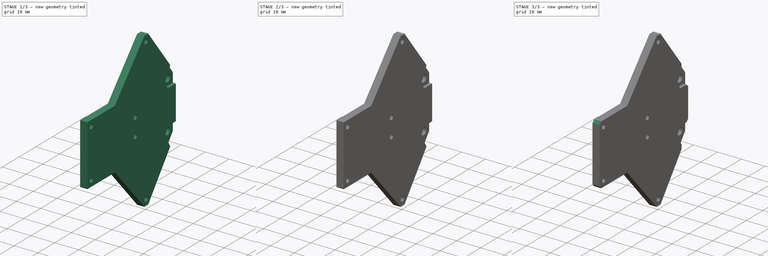
[diagram: build sequence overview — one tinted view per stage of 3, left to right]
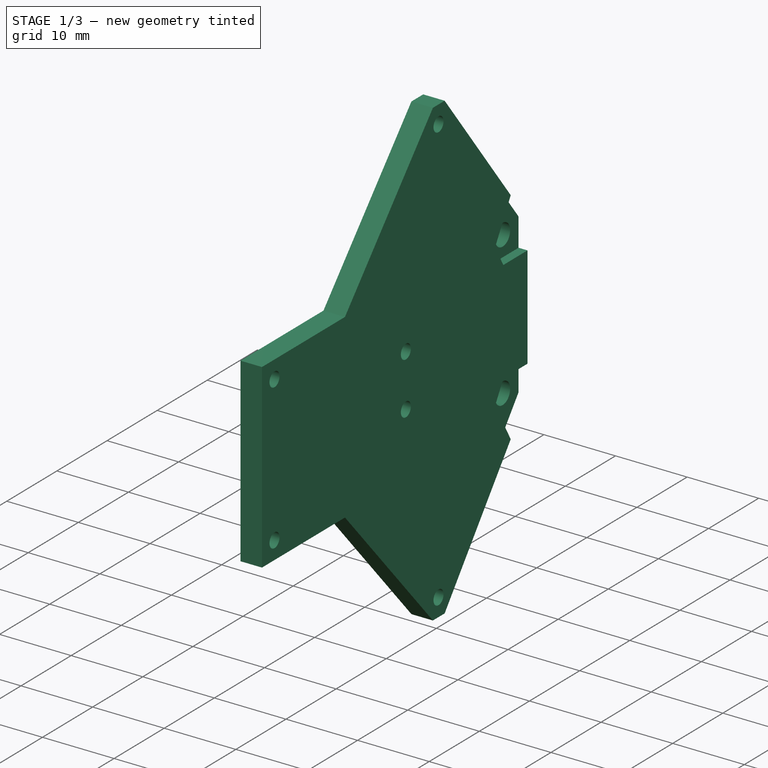
[diagram: stage 1 of 3 — iso view after this stage's code; geometry added in this stage tinted green]
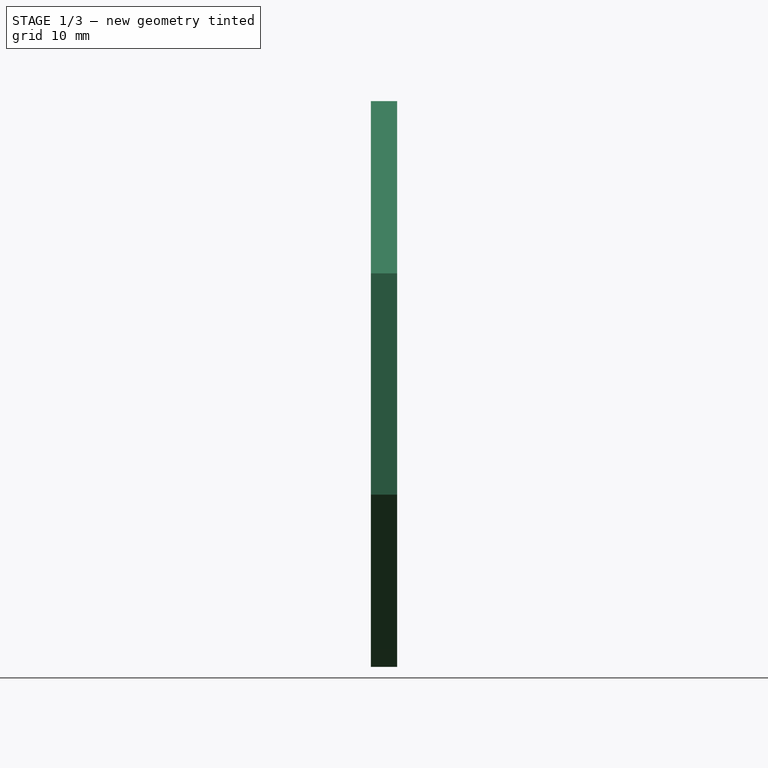
[diagram: stage 1 of 3 — front view after this stage's code; geometry added in this stage tinted green]
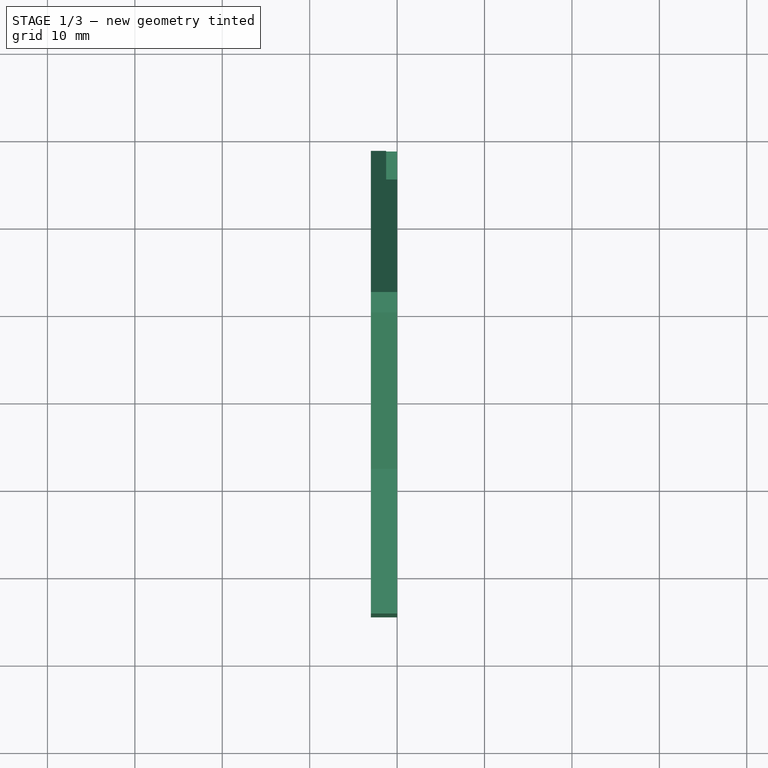
[diagram: stage 1 of 3 — top view after this stage's code; geometry added in this stage tinted green]
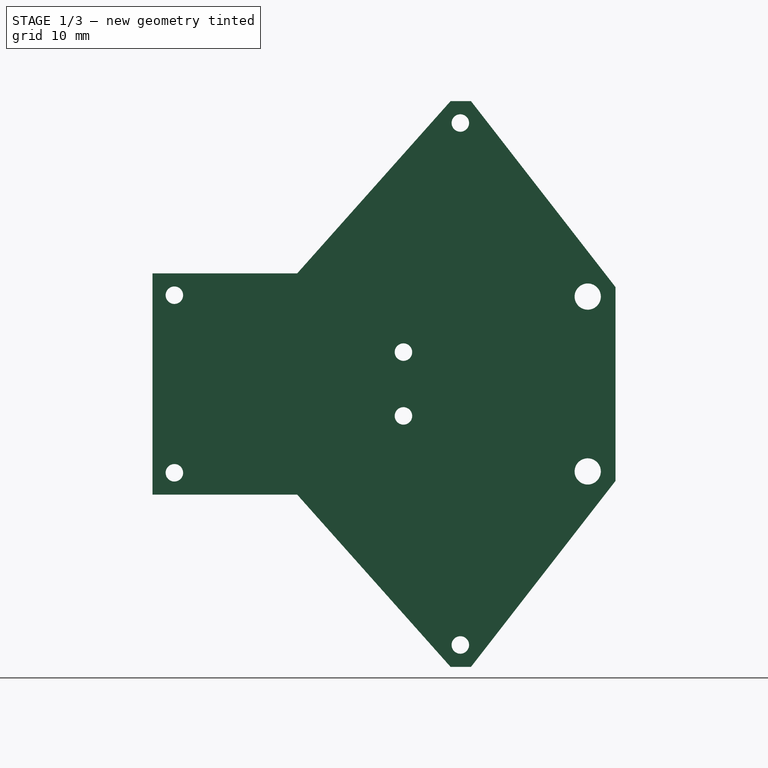
[diagram: stage 1 of 3 — right view after this stage's code; geometry added in this stage tinted green]
FCSTD DOCUMENT  (FreeCAD 0.21R33771 (Git))
Label: Leg_frame_nee3
License: All rights reserved
LicenseURL: https://en.wikipedia.org/wiki/All_rights_reserved
objects: Sketcher::SketchObject×3, PartDesign::Pad×2, PartDesign::Chamfer×2, PartDesign::Pocket×1, PartDesign::Body×1
note: 14 computed .brp shape members not serialized (recipe doc carries the construction recipe); baked Part::Feature solids carry a one-line shape summary decoded from their .brp

FEATURE [Sketcher::SketchObject] Sketch
  FullyConstrained = true
  MapMode = 5
  Placement = pos=(0,0,0) rot=(0.57735,0.57735,0.57735;2.0944rad)
  Support = -> [YZ_Plane]
  sketch-geometry (57):
    g0: Circle CenterX=0 CenterY=23.5 CenterZ=0 NormalX=0 NormalY=0 NormalZ=1 AngleXU=0 Radius=16
    g1: LineSegment StartX=3.85635 StartY=39.0283 StartZ=0 EndX=33.9425 EndY=31.5566 EndZ=0
    g2: LineSegment StartX=33.9425 StartY=31.5566 StartZ=0 EndX=26.2298 EndY=0.5 EndZ=0
    g3: LineSegment StartX=26.2298 StartY=0.5 StartZ=0 EndX=-3.85635 EndY=7.97169 EndZ=0
    g4: Circle CenterX=0 CenterY=-23.5 CenterZ=0 NormalX=0 NormalY=0 NormalZ=1 AngleXU=0 Radius=16
    g5: LineSegment StartX=3.85635 StartY=-39.0283 StartZ=0 EndX=33.9425 EndY=-31.5566 EndZ=0
    g6: LineSegment StartX=33.9425 StartY=-31.5566 StartZ=0 EndX=26.2298 EndY=-0.5 EndZ=0
    g7: LineSegment StartX=-3.85635 StartY=-7.97169 StartZ=0 EndX=26.2298 EndY=-0.5 EndZ=0
    g8: LineSegment StartX=0 StartY=23.5 StartZ=0 EndX=0 EndY=-23.5 EndZ=0
    g9: LineSegment StartX=45 StartY=10 StartZ=0 EndX=45 EndY=-10 EndZ=0
    g10: LineSegment StartX=4.22432 StartY=36.361 StartZ=0 EndX=30.4283 EndY=29.8534 EndZ=0
    g11: LineSegment StartX=30.4283 StartY=29.8534 StartZ=0 EndX=23.9208 EndY=3.64937 EndZ=0
    g12: LineSegment StartX=23.9208 StartY=3.64937 StartZ=0 EndX=-2.28328 EndY=10.157 EndZ=0
    g13: LineSegment StartX=-2.28328 StartY=10.157 StartZ=0 EndX=4.22432 EndY=36.361 EndZ=0
    g14: Circle CenterX=4.22432 CenterY=36.361 CenterZ=0 NormalX=0 NormalY=0 NormalZ=1 AngleXU=0 Radius=1
    g15: Circle CenterX=-2.28328 CenterY=10.157 CenterZ=0 NormalX=0 NormalY=0 NormalZ=1 AngleXU=0 Radius=1
    g16: Circle CenterX=23.9208 CenterY=3.64937 CenterZ=0 NormalX=0 NormalY=0 NormalZ=1 AngleXU=0 Radius=1
    g17: Circle CenterX=30.4283 CenterY=29.8534 CenterZ=0 NormalX=0 NormalY=0 NormalZ=1 AngleXU=0 Radius=1
    g18: LineSegment StartX=-2.28328 StartY=-10.157 StartZ=0 EndX=23.9208 EndY=-3.64937 EndZ=0
    g19: LineSegment StartX=23.9208 StartY=-3.64937 StartZ=0 EndX=30.4283 EndY=-29.8534 EndZ=0
    g20: LineSegment StartX=30.4283 StartY=-29.8534 StartZ=0 EndX=4.22432 EndY=-36.361 EndZ=0
    g21: LineSegment StartX=4.22432 StartY=-36.361 StartZ=0 EndX=-2.28328 EndY=-10.157 EndZ=0
    g22: Circle CenterX=-2.28328 CenterY=-10.157 CenterZ=0 NormalX=0 NormalY=0 NormalZ=1 AngleXU=0 Radius=1
    g23: Circle CenterX=4.22432 CenterY=-36.361 CenterZ=0 NormalX=0 NormalY=0 NormalZ=1 AngleXU=0 Radius=1
    g24: Circle CenterX=30.4283 CenterY=-29.8534 CenterZ=0 NormalX=0 NormalY=0 NormalZ=1 AngleXU=0 Radius=1
    g25: Circle CenterX=23.9208 CenterY=-3.64937 CenterZ=0 NormalX=0 NormalY=0 NormalZ=1 AngleXU=0 Radius=1
    g26: LineSegment StartX=0 StartY=23.5 StartZ=0 EndX=0.97052 EndY=23.259 EndZ=0
    g27: LineSegment StartX=0 StartY=-23.5 StartZ=0 EndX=0.97052 EndY=-23.259 EndZ=0
    g28: Circle CenterX=45 CenterY=10 CenterZ=0 NormalX=0 NormalY=0 NormalZ=1 AngleXU=0 Radius=1.5
    g29: Circle CenterX=45 CenterY=-10 CenterZ=0 NormalX=0 NormalY=0 NormalZ=1 AngleXU=0 Radius=1.5
    g30: LineSegment StartX=26.2298 StartY=0.5 StartZ=0 EndX=43.1548 EndY=12.5843 EndZ=0
    g31: Circle CenterX=28 CenterY=37 CenterZ=0 NormalX=0 NormalY=0 NormalZ=1 AngleXU=0 Radius=3
    g32: LineSegment StartX=48.1754 StartY=11.0887 StartZ=0 EndX=48.1754 EndY=-11.0887 EndZ=0
    g33: LineSegment StartX=-9.0955 StartY=36.6633 StartZ=0 EndX=-14.197 EndY=16.1213 EndZ=0
    g34: LineSegment StartX=0 StartY=23.5 StartZ=0 EndX=-11.6462 EndY=26.3923 EndZ=0
    g35: Circle CenterX=30.4283 CenterY=-29.8534 CenterZ=0 NormalX=0 NormalY=0 NormalZ=1 AngleXU=0 Radius=2.5
    g36: LineSegment StartX=48.1754 StartY=11.0887 StartZ=0 EndX=31.6518 EndY=32.3534 EndZ=0
    g37: Circle CenterX=4.22432 CenterY=36.361 CenterZ=0 NormalX=0 NormalY=0 NormalZ=1 AngleXU=0 Radius=2.5
    g38: LineSegment StartX=48.1754 StartY=-11.0887 StartZ=0 EndX=31.6518 EndY=-32.3534 EndZ=0
    g39: Circle CenterX=4.22432 CenterY=-36.361 CenterZ=0 NormalX=0 NormalY=0 NormalZ=1 AngleXU=0 Radius=2.5
    g40: LineSegment StartX=29.307 StartY=32.3534 StartZ=0 EndX=31.6518 EndY=32.3534 EndZ=0
    g41: Circle CenterX=30.4283 CenterY=29.8534 CenterZ=0 NormalX=0 NormalY=0 NormalZ=1 AngleXU=0 Radius=2.5
    g42: LineSegment StartX=-4.78328 StartY=12.657 StartZ=0 EndX=11.7687 EndY=12.657 EndZ=0
    g43: LineSegment StartX=11.7687 StartY=12.657 StartZ=0 EndX=29.307 EndY=32.3534 EndZ=0
    g44: LineSegment StartX=29.307 StartY=-32.3534 StartZ=0 EndX=31.6518 EndY=-32.3534 EndZ=0
    g45: LineSegment StartX=-4.78328 StartY=-12.657 StartZ=0 EndX=11.7687 EndY=-12.657 EndZ=0
    g46: LineSegment StartX=11.7687 StartY=-12.657 StartZ=0 EndX=29.307 EndY=-32.3534 EndZ=0
    g47: LineSegment StartX=43.4123 StartY=12.75 StartZ=0 EndX=41.8246 EndY=10 EndZ=0
    g48: LineSegment StartX=41.8246 StartY=10 StartZ=0 EndX=43.4123 EndY=7.25 EndZ=0
    g49: LineSegment StartX=43.4123 StartY=7.25 StartZ=0 EndX=46.5877 EndY=7.25 EndZ=0
    g50: LineSegment StartX=46.5877 StartY=7.25 StartZ=0 EndX=48.1754 EndY=10 EndZ=0
    g51: LineSegment StartX=48.1754 StartY=10 StartZ=0 EndX=46.5877 EndY=12.75 EndZ=0
    g52: LineSegment StartX=46.5877 StartY=12.75 StartZ=0 EndX=43.4123 EndY=12.75 EndZ=0
    g53: Circle CenterX=45 CenterY=10 CenterZ=0 NormalX=0 NormalY=0 NormalZ=1 AngleXU=0 Radius=3.17543
    g54: LineSegment StartX=26.2298 StartY=-0.5 StartZ=0 EndX=26.2298 EndY=0.5 EndZ=0
    g55: LineSegment StartX=-4.78328 StartY=-12.657 StartZ=0 EndX=-4.78328 EndY=12.657 EndZ=0
    g56: Circle CenterX=-2.28328 CenterY=10.157 CenterZ=0 NormalX=0 NormalY=0 NormalZ=1 AngleXU=0 Radius=2.5
  constraints (143):
    c: Coincident(g2,g1)
    c: Coincident(g3,g2)
    c: Tangent(g3,g0) = 1.5708
    c: Tangent(g1,g0) = 1.5708
    c: Diameter(g4) = 32
    c: Coincident(g6,g5)
    c: Tangent(g5,g4) = -1.5708
    c: Coincident(g7,g6)
    c: Tangent(g7,g4) = 1.5708
    c: Equal(g7,g3)
    c: PointOnObject(g-1,g8)
    c: DistanceY(g8,g8) = 47
    c: DistanceY(g9,g9) = 20
    c: Perpendicular(g1,g2)
    c: Perpendicular(g2,g3)
    c: Perpendicular(g6,g7)
    c: Perpendicular(g5,g6)
    c: Distance(g1) = 31
    c: Coincident(g10,g11)
    c: Coincident(g11,g12)
    c: Coincident(g12,g13)
    c: Coincident(g13,g10)
    c: Coincident(g14,g10)
    c: Coincident(g15,g12)
    c: Coincident(g16,g11)
    c: Coincident(g17,g10)
    c: Equal(g0,g4)
    c: Symmetric(g9,g9,g-1)
    c: DistanceX(g-1,g9) = 45
    c: Equal(g15,g14)
    c: Equal(g14,g17)
    c: Equal(g17,g16)
    c: Equal(g13,g10)
    c: Equal(g10,g11)
    c: Equal(g11,g12)
    c: Distance(g10) = 27
    c: Coincident(g18,g19)
    c: Coincident(g19,g20)
    c: Coincident(g20,g21)
    c: Coincident(g21,g18)
    c: Coincident(g22,g18)
    c: Coincident(g23,g20)
    c: Coincident(g24,g19)
    c: Coincident(g25,g18)
    c: Equal(g23,g22)
    c: Equal(g22,g25)
    c: Equal(g25,g24)
    c: Equal(g14,g22) = 2
    c: Equal(g21,g18)
    c: Equal(g18,g19)
    c: Equal(g19,g20)
    c: Equal(g10,g18) = 27
    c: PointOnObject(g26,g13)
    c: Parallel(g26,g1)
    c: Symmetric(g15,g14,g26)
    c: Perpendicular(g13,g10)
    c: PointOnObject(g27,g21)
    c: Parallel(g20,g5)
    c: Symmetric(g22,g23,g27)
    c: Symmetric(g26,g27,g-1)
    c: Coincident(g28,g9)
    c: Coincident(g29,g9)
    c: Diameter(g28) = 3
    c: Equal(g29,g28)
    c: Coincident(g30,g2)
    c: DistanceY(g6,g2) = 1
    c: Diameter(g31) = 6
    c: Symmetric(g32,g32,g-1)
    c: PointOnObject(g33,g0)
    c: PointOnObject(g33,g0)
    c: PointOnObject(g34,g33)
    c: Perpendicular(g33,g34)
    c: Distance(g34) = 12
    c: Distance(g26) = 1
    c: Parallel(g26,g34)
    c: Diameter(g15) = 2
    c: Coincident(g35,g24)
    c: Tangent(g35,g5)
    c: Coincident(g36,g32)
    c: Coincident(g36,g40)
    c: Coincident(g37,g14)
    c: Tangent(g37,g1)
    c: Coincident(g38,g32)
    c: Coincident(g38,g44)
    c: Coincident(g39,g20)
    c: Coincident(g43,g40)
    c: Coincident(g41,g17)
    c: Tangent(g41,g1)
    c: Tangent(g40,g41)
    c: Tangent(g36,g41)
    c: Coincident(g42,g43)
    c: Tangent(g43,g41)
    c: Horizontal(g42)
    c: Horizontal(g40)
    c: Tangent(g0,g43)
    c: Coincident(g46,g44)
    c: Coincident(g45,g46)
    c: Horizontal(g44)
    c: Tangent(g44,g35)
    c: Tangent(g38,g35)
    c: Tangent(g46,g35)
    c: Tangent(g46,g4)
    c: Horizontal(g45)
    c: Coincident(g47,g48)
    c: Coincident(g48,g49)
    c: Coincident(g49,g50)
    c: Coincident(g50,g51)
    c: Coincident(g51,g52)
    c: Coincident(g52,g47)
    c: Equal(g47, g48-g52) x5
    c: PointOnObject(g47,g53)
    c: PointOnObject(g48,g53)
    c: PointOnObject(g49,g53)
    c: PointOnObject(g50,g53)
    c: PointOnObject(g51,g53)
    c: PointOnObject(g52,g53)
    c: Coincident(g53,g28)
    c: Tangent(g30,g53) = 1.5708
    c: Horizontal(g52)
    c: DistanceY(g48,g47) = 5.5
    c: Tangent(g53,g36)
    c: Tangent(g53,g32)
    c: DistanceY(g36,g31) = 4.6466
    c: Coincident(g0,g8)
    c: Coincident(g0,g34)
    c: Vertical(g8)
    c: Coincident(g0,g26)
    c: Equal(g35,g39)
    c: Equal(g39,g37)
    c: Coincident(g4,g8)
    c: Coincident(g4,g27)
    c: Coincident(g54,g6)
    c: Coincident(g54,g2)
    c: Vertical(g54)
    c: DistanceX(g0,g31) = 28
    c: DistanceY(g0,g31) = 13.5
    c: Coincident(g55,g45)
    c: Coincident(g55,g42)
    c: Coincident(g56,g15)
    c: Equal(g56,g37)
    c: Tangent(g42,g56)
    c: Tangent(g56,g55)
    c: Symmetric(g42,g45,g-1)
FEATURE [PartDesign::Pad] Pad
  Direction = (1,-2e-16,3e-16)
  Length = 3
  Length2 = 10
  Placement = pos=(0,0,0) rot=(1,1,1;2.0944rad)
  Profile = -> Sketch
  ReferenceAxis = -> Sketch [N_Axis]
  Reversed = true
  Type = 0
FEATURE [Sketcher::SketchObject] Sketch001
  ExternalGeometry = -> [Pad]
  FullyConstrained = true
  MapMode = 5
  Placement = pos=(-5.3e-15,0,0) rot=(0.57735,0.57735,0.57735;2.0944rad)
  Support = -> [Pad]
  sketch-geometry (22):
    g0: LineSegment StartX=43.3546 StartY=12.85 StartZ=0 EndX=41.7091 EndY=10 EndZ=0
    g1: LineSegment StartX=41.7091 StartY=10 StartZ=0 EndX=43.3546 EndY=7.15 EndZ=0
    g2: LineSegment StartX=43.3546 StartY=7.15 StartZ=0 EndX=46.6454 EndY=7.15 EndZ=0
    g3: LineSegment StartX=46.6454 StartY=7.15 StartZ=0 EndX=48.2909 EndY=10 EndZ=0
    g4: LineSegment StartX=48.2909 StartY=10 StartZ=0 EndX=46.6454 EndY=12.85 EndZ=0
    g5: LineSegment StartX=46.6454 StartY=12.85 StartZ=0 EndX=43.3546 EndY=12.85 EndZ=0
    g6: Circle CenterX=45 CenterY=10 CenterZ=0 NormalX=0 NormalY=0 NormalZ=1 AngleXU=0 Radius=3.2909
    g7: LineSegment StartX=43.3546 StartY=12.85 StartZ=0 EndX=44.8262 EndY=15.3989 EndZ=0
    g8: LineSegment StartX=46.6454 StartY=7.15 StartZ=0 EndX=48.1754 EndY=7.15 EndZ=0
    g9: LineSegment StartX=43.3546 StartY=-7.15 StartZ=0 EndX=41.7091 EndY=-10 EndZ=0
    g10: LineSegment StartX=41.7091 StartY=-10 StartZ=0 EndX=43.3546 EndY=-12.85 EndZ=0
    g11: LineSegment StartX=43.3546 StartY=-12.85 StartZ=0 EndX=46.6454 EndY=-12.85 EndZ=0
    g12: LineSegment StartX=46.6454 StartY=-12.85 StartZ=0 EndX=48.2909 EndY=-10 EndZ=0
    g13: LineSegment StartX=48.2909 StartY=-10 StartZ=0 EndX=46.6454 EndY=-7.15 EndZ=0
    g14: LineSegment StartX=46.6454 StartY=-7.15 StartZ=0 EndX=43.3546 EndY=-7.15 EndZ=0
    g15: Circle CenterX=45 CenterY=-10 CenterZ=0 NormalX=0 NormalY=0 NormalZ=1 AngleXU=0 Radius=3.2909
    g16: LineSegment StartX=46.6454 StartY=-7.15 StartZ=0 EndX=48.1754 EndY=-7.15 EndZ=0
    g17: LineSegment StartX=43.3546 StartY=-12.85 StartZ=0 EndX=44.8262 EndY=-15.3989 EndZ=0
    g18: LineSegment StartX=44.8262 StartY=15.3989 StartZ=0 EndX=48.1754 EndY=11.0887 EndZ=0
    g19: LineSegment StartX=48.1754 StartY=11.0887 StartZ=0 EndX=48.1754 EndY=7.15 EndZ=0
    g20: LineSegment StartX=48.1754 StartY=-7.15 StartZ=0 EndX=48.1754 EndY=-11.0887 EndZ=0
    g21: LineSegment StartX=44.8262 StartY=-15.3989 StartZ=0 EndX=48.1754 EndY=-11.0887 EndZ=0
  constraints (50):
    c: Coincident(g0,g1)
    c: Coincident(g1,g2)
    c: Coincident(g2,g3)
    c: Coincident(g3,g4)
    c: Coincident(g4,g5)
    c: Coincident(g5,g0)
    c: Equal(g0, g1-g5) x5
    c: PointOnObject(g0,g6)
    c: PointOnObject(g1,g6)
    c: PointOnObject(g2,g6)
    c: PointOnObject(g3,g6)
    c: PointOnObject(g4,g6)
    c: PointOnObject(g5,g6)
    c: Coincident(g6,g-3)
    c: DistanceY(g1,g0) = 5.7
    c: Horizontal(g5)
    c: PointOnObject(g7,g-4)
    c: Coincident(g8,g2)
    c: PointOnObject(g8,g-5)
    c: Horizontal(g8)
    c: Tangent(g7,g0) = 1.5708
    c: Coincident(g9,g10)
    c: Coincident(g10,g11)
    c: Coincident(g11,g12)
    c: Coincident(g12,g13)
    c: Coincident(g13,g14)
    c: Coincident(g14,g9)
    c: Equal(g9, g10-g14) x5
    c: PointOnObject(g9,g15)
    c: PointOnObject(g10,g15)
    c: PointOnObject(g11,g15)
    c: PointOnObject(g12,g15)
    c: PointOnObject(g13,g15)
    c: PointOnObject(g14,g15)
    c: Coincident(g15,g-6)
    c: Horizontal(g14)
    c: Coincident(g16,g14)
    c: PointOnObject(g16,g-5)
    c: Horizontal(g16)
    c: PointOnObject(g17,g-7)
    c: Tangent(g17,g10) = -1.5708
    c: Coincident(g18,g7)
    c: Coincident(g18,g-5)
    c: Coincident(g19,g18)
    c: Coincident(g19,g8)
    c: Coincident(g20,g16)
    c: Coincident(g20,g-7)
    c: Coincident(g21,g17)
    c: Coincident(g21,g20)
    c: Equal(g15,g6)
FEATURE [PartDesign::Pocket] Pocket
  BaseFeature = -> Pad
  Direction = (-1,4e-16,-4e-16)
  Length = 1.25
  Length2 = 5
  Placement = pos=(0,0,0) rot=(1,1,1;2.0944rad)
  Profile = -> Sketch001
  ReferenceAxis = -> Sketch001 [N_Axis]
  Type = 0
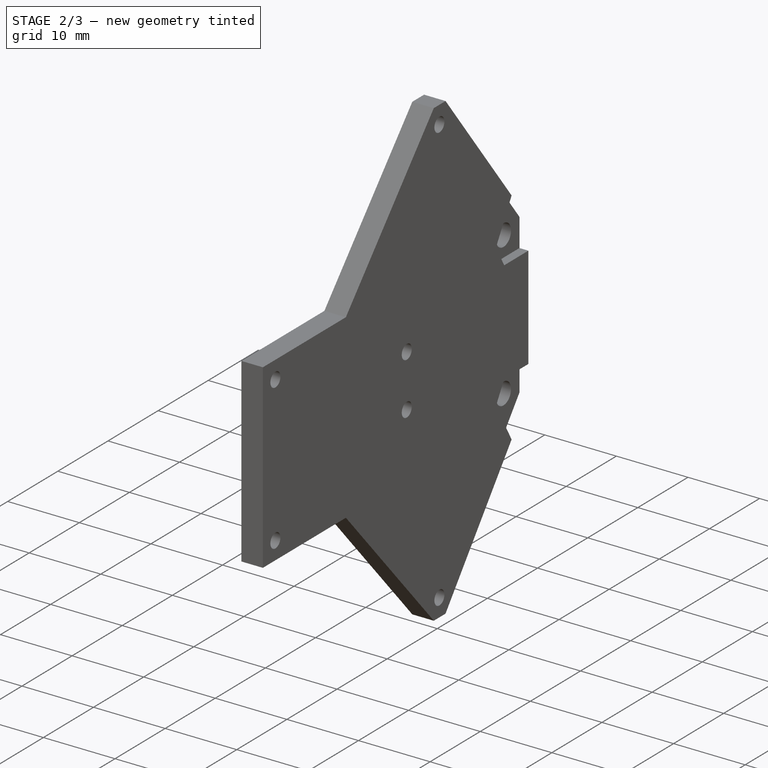
[diagram: stage 2 of 3 — iso view after this stage's code; geometry added in this stage tinted green]
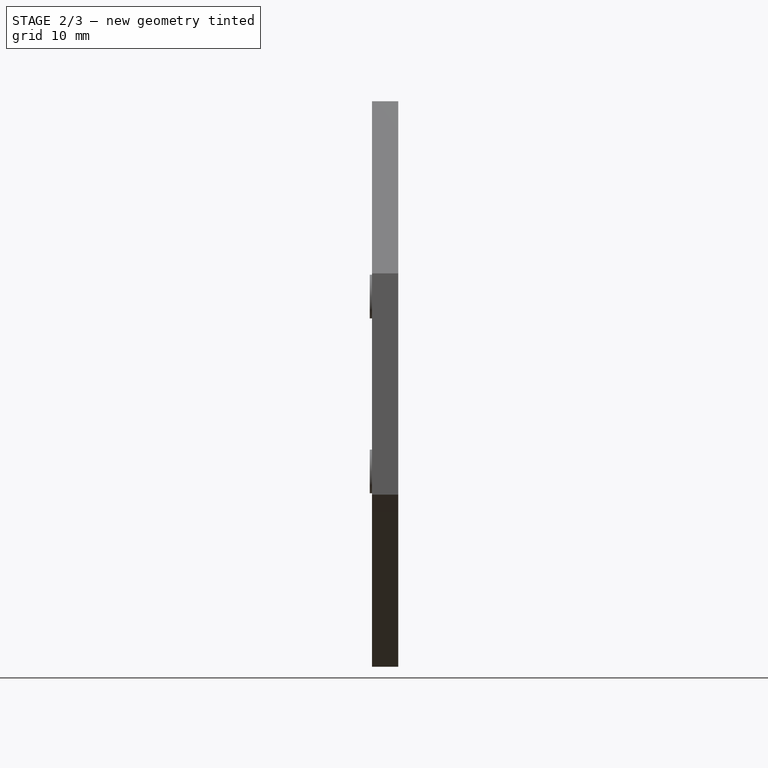
[diagram: stage 2 of 3 — front view after this stage's code; geometry added in this stage tinted green]
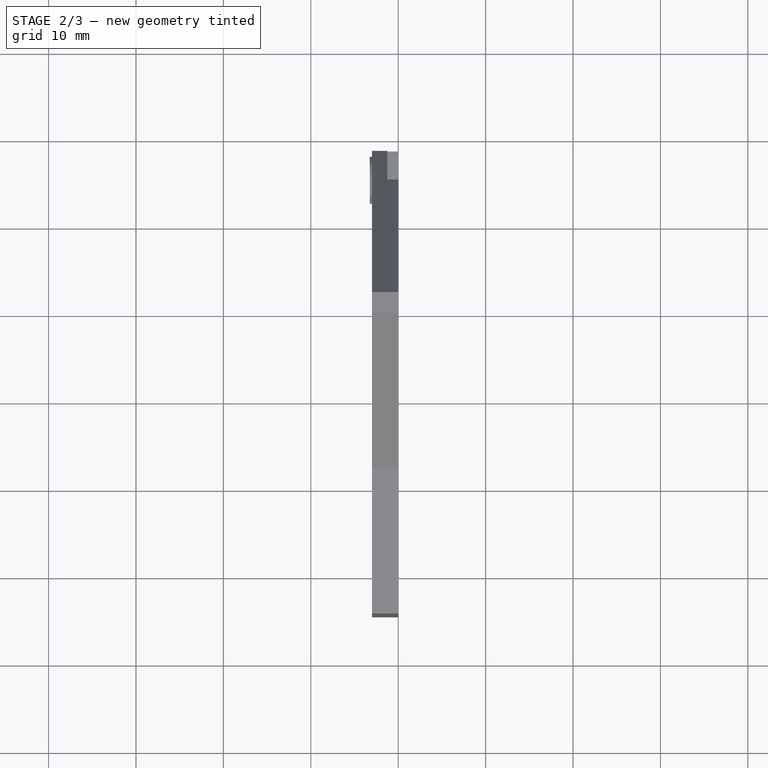
[diagram: stage 2 of 3 — top view after this stage's code; geometry added in this stage tinted green]
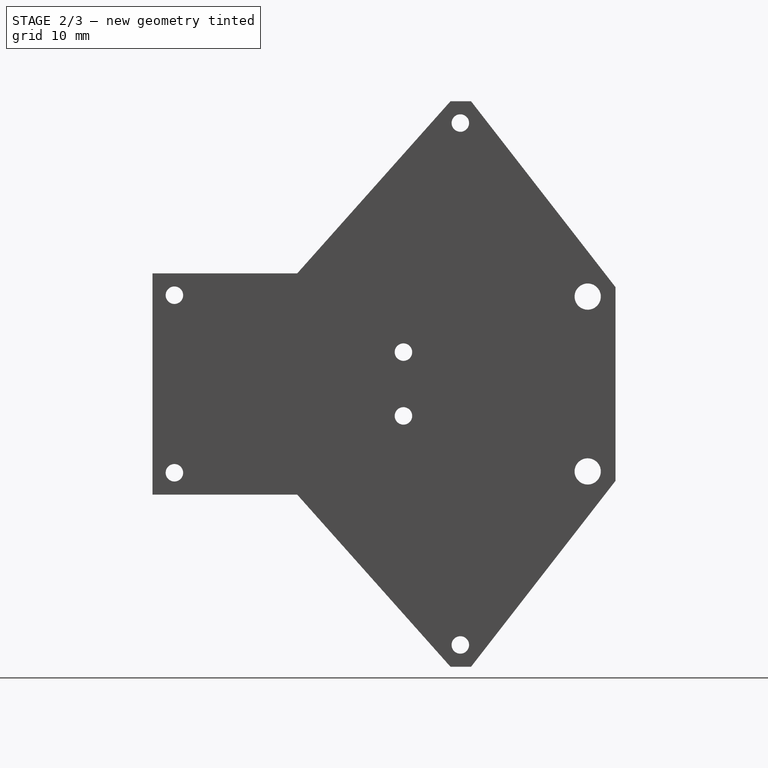
[diagram: stage 2 of 3 — right view after this stage's code; geometry added in this stage tinted green]
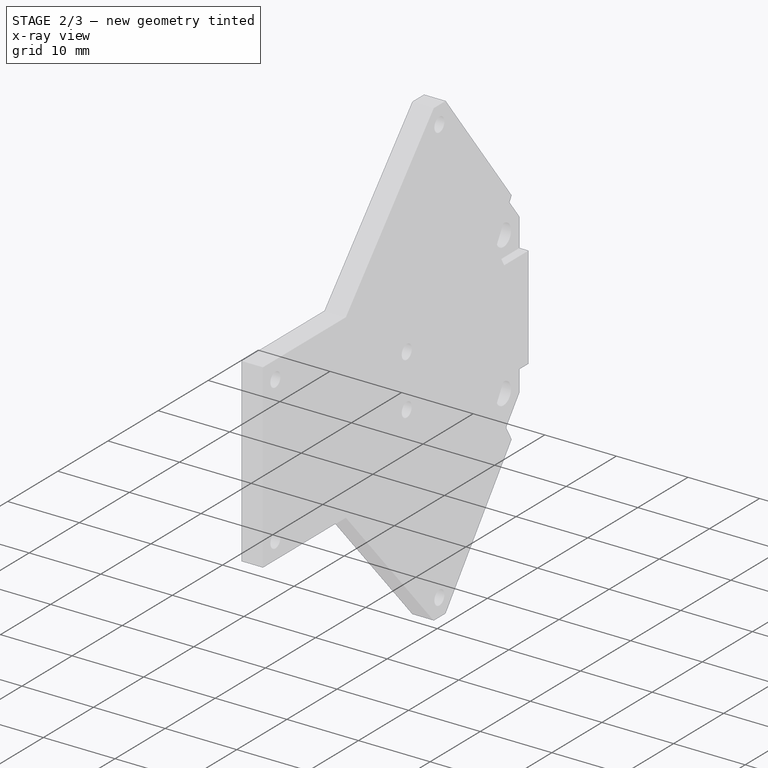
[diagram: stage 2 of 3 — x-ray composite at the iso view; earlier geometry ghosted, this stage's added geometry solid]
FEATURE [Sketcher::SketchObject] Sketch002
  ExternalGeometry = -> [Pocket]
  FullyConstrained = true
  MapMode = 5
  Placement = pos=(-3,2e-15,-1.3e-15) rot=(-0.57735,-0.57735,0.57735;2.0944rad)
  Support = -> [Pocket]
  sketch-geometry (4):
    g0: Circle CenterX=45 CenterY=10 CenterZ=0 NormalX=0 NormalY=0 NormalZ=1 AngleXU=0 Radius=2.5
    g1: Circle CenterX=45 CenterY=10 CenterZ=0 NormalX=0 NormalY=0 NormalZ=1 AngleXU=0 Radius=1.5
    g2: Circle CenterX=45 CenterY=-10 CenterZ=0 NormalX=0 NormalY=0 NormalZ=1 AngleXU=0 Radius=1.5
    g3: Circle CenterX=45 CenterY=-10 CenterZ=0 NormalX=0 NormalY=0 NormalZ=1 AngleXU=0 Radius=2.5
  constraints (8):
    c: Coincident(g0,g-3)
    c: Coincident(g1,g0)
    c: Tangent(g1,g-3)
    c: Coincident(g2,g-4)
    c: Tangent(g2,g-4)
    c: Coincident(g3,g2)
    c: Equal(g3,g0)
    c: Diameter(g0) = 5
FEATURE [PartDesign::Pad] Pad001
  BaseFeature = -> Pocket
  Direction = (-1,6e-16,-5e-16)
  Length = 0.25
  Length2 = 10
  Placement = pos=(0,0,0) rot=(1,1,1;2.0944rad)
  Profile = -> Sketch002
  ReferenceAxis = -> Sketch002 [N_Axis]
  Type = 0
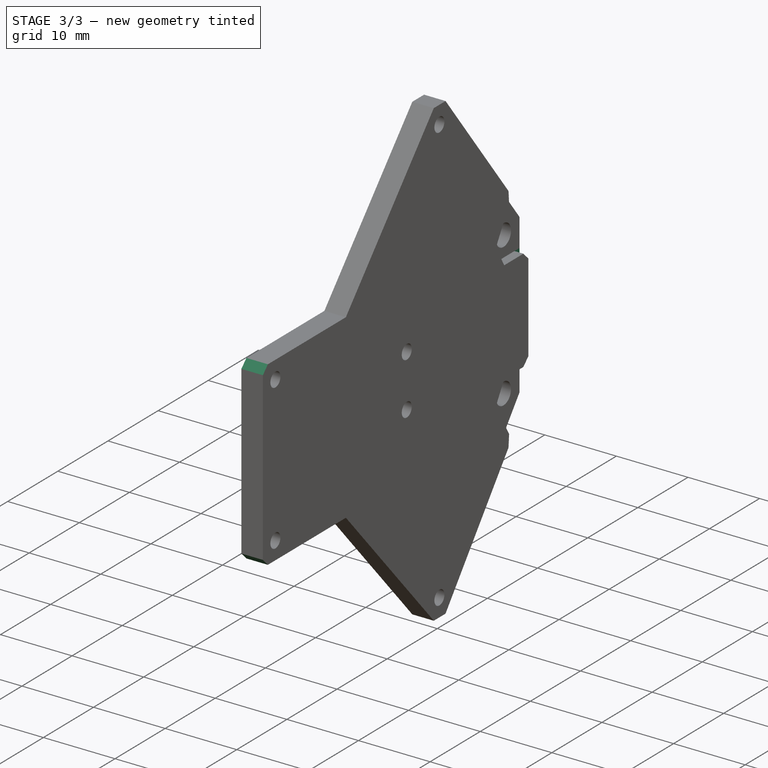
[diagram: stage 3 of 3 — iso view after this stage's code; geometry added in this stage tinted green]
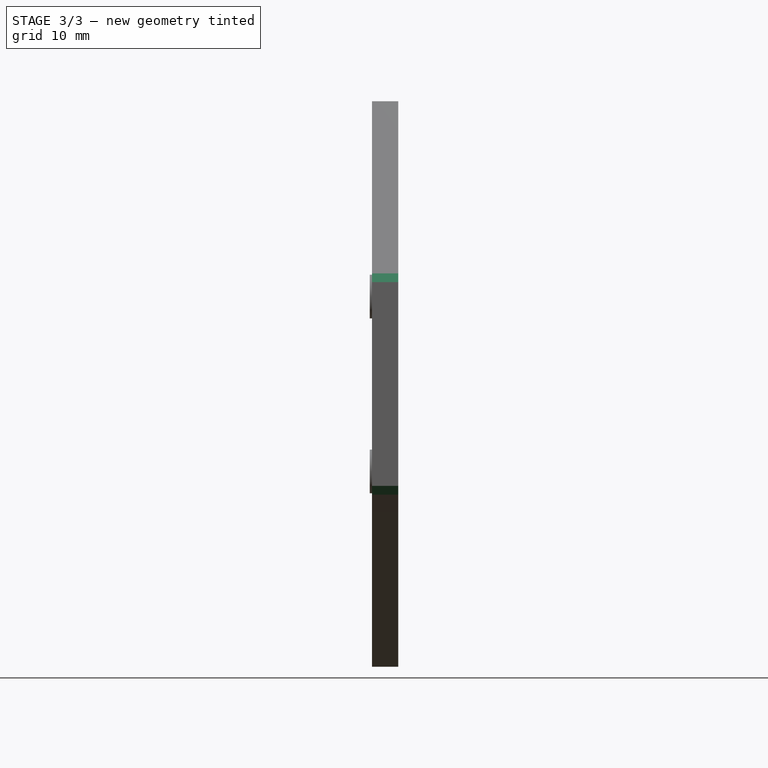
[diagram: stage 3 of 3 — front view after this stage's code; geometry added in this stage tinted green]
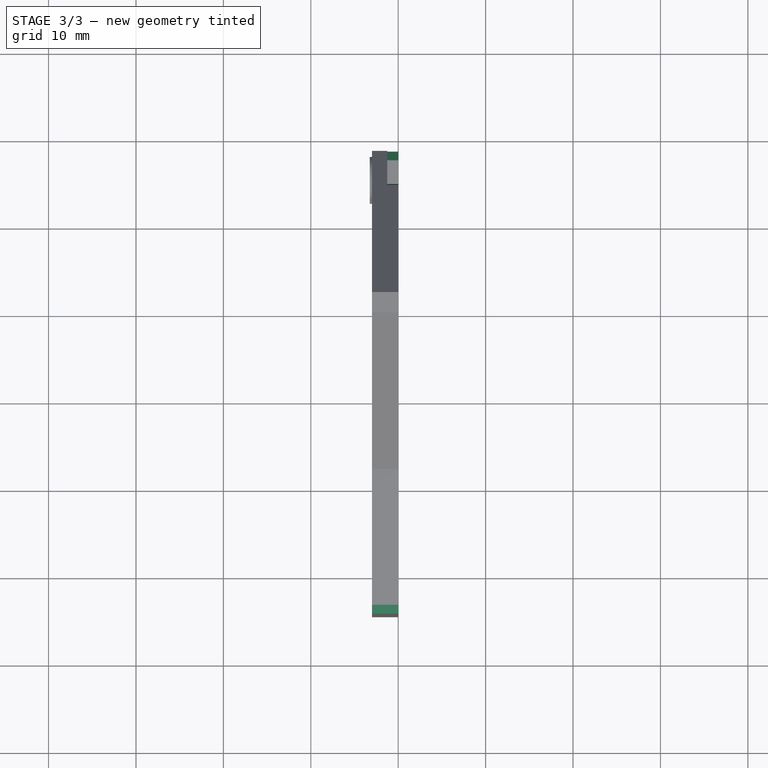
[diagram: stage 3 of 3 — top view after this stage's code; geometry added in this stage tinted green]
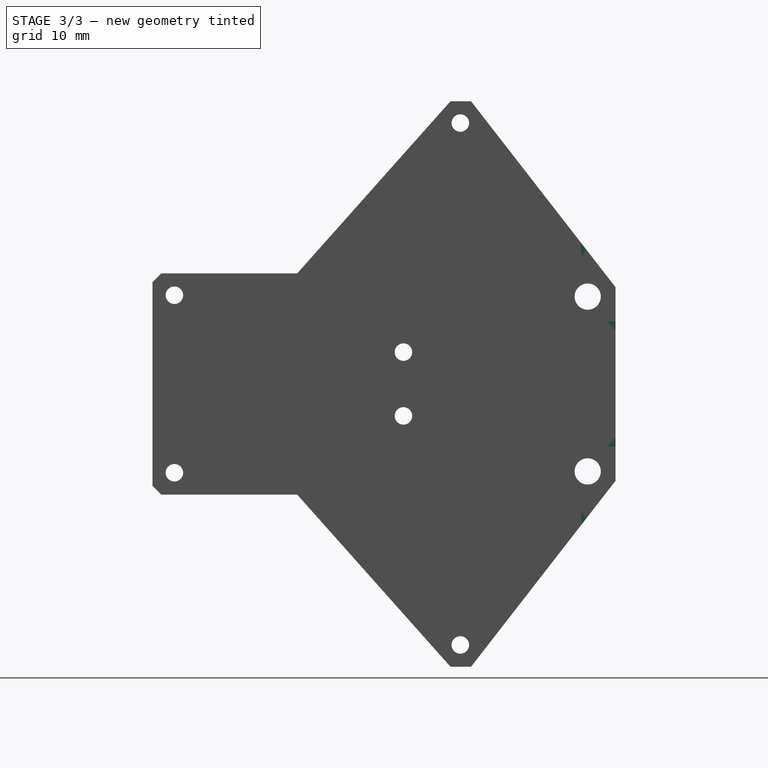
[diagram: stage 3 of 3 — right view after this stage's code; geometry added in this stage tinted green]
FEATURE [PartDesign::Chamfer] Chamfer
  Angle = 45
  Base = -> Pad001 [Edge53,Edge63,Edge66,Edge77,Edge2,Edge1]
  BaseFeature = -> Pad001
  ChamferType = 0
  FlipDirection = false
  Placement = pos=(0,0,0) rot=(1,1,1;2.0944rad)
  Size = 1
  Size2 = 1
  SupportTransform = false
  UseAllEdges = false
FEATURE [PartDesign::Chamfer] Chamfer001
  Angle = 45
  Base = -> Chamfer [Edge54,Edge53,Edge50,Edge55,Edge56,Edge51]
  BaseFeature = -> Chamfer
  ChamferType = 0
  FlipDirection = false
  Placement = pos=(0,0,0) rot=(1,1,1;2.0944rad)
  Size = 1.2
  Size2 = 1
  SupportTransform = false
  UseAllEdges = false
FEATURE [PartDesign::Body] Body
  Group = -> [Sketch,Pad,Sketch001,Pocket,Sketch002,Pad001,Chamfer,Chamfer001]
  Origin = -> Origin
  Tip = -> Chamfer001
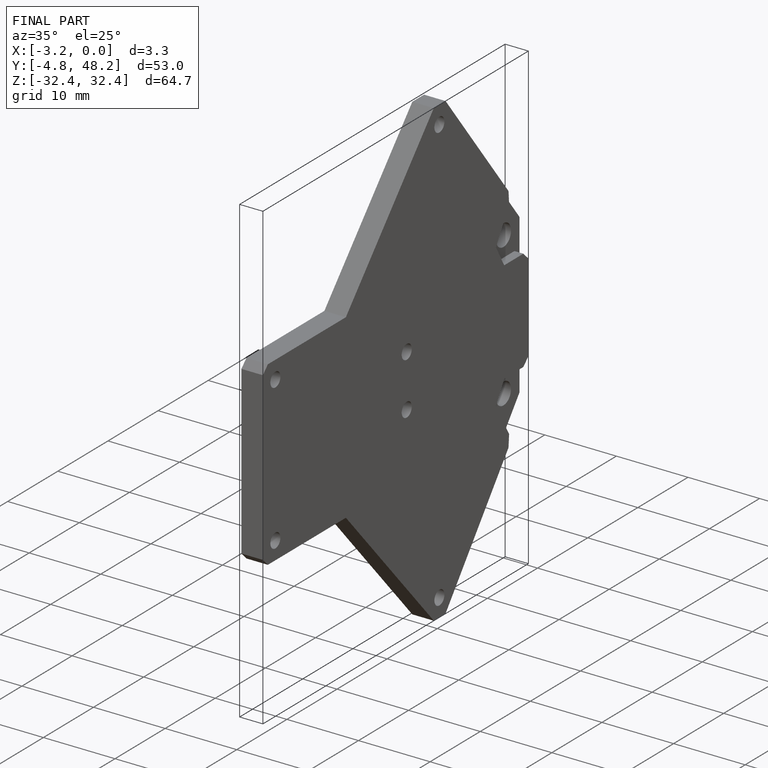
[diagram: finished part — iso view with bounding-box wireframe]
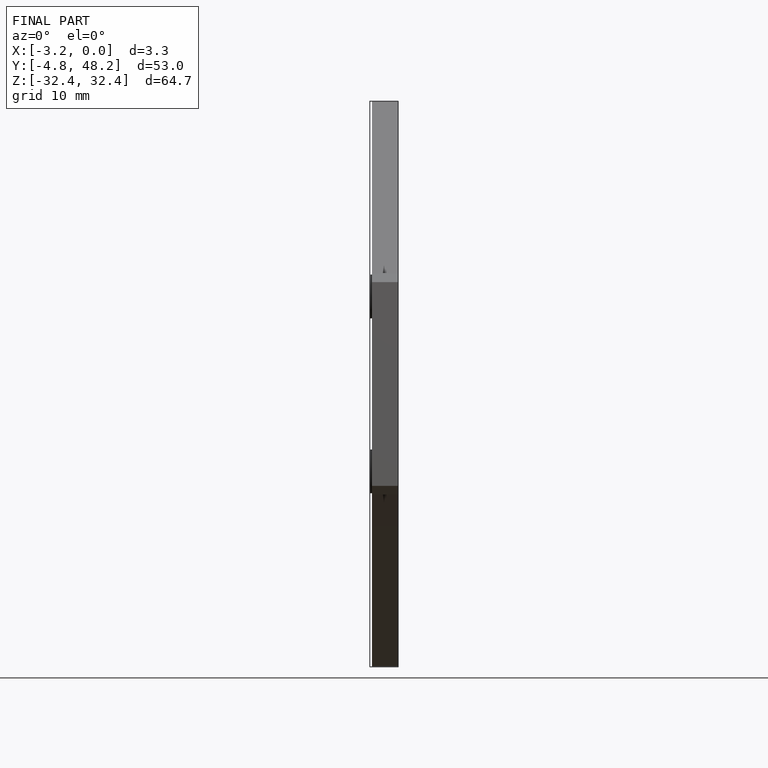
[diagram: finished part — front view with bounding-box wireframe]
